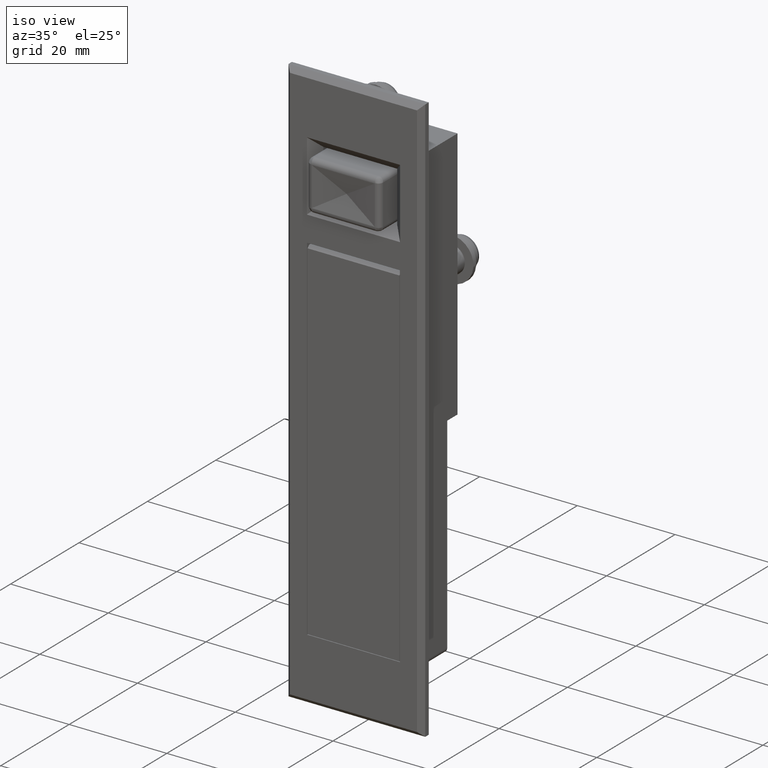
[diagram: clean part render]
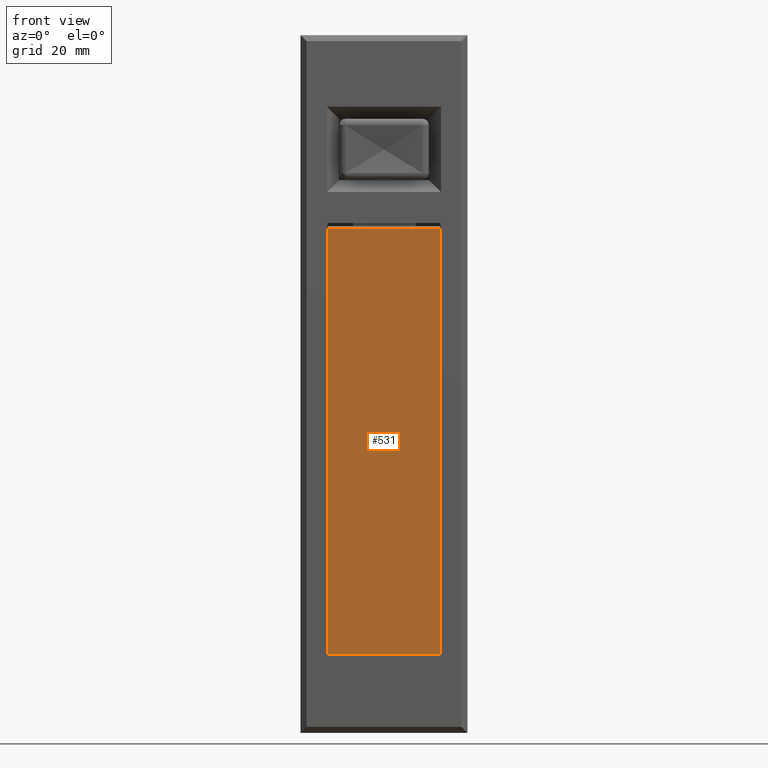
[diagram: tour spotlight — one face highlighted and labeled with its STEP entity id]
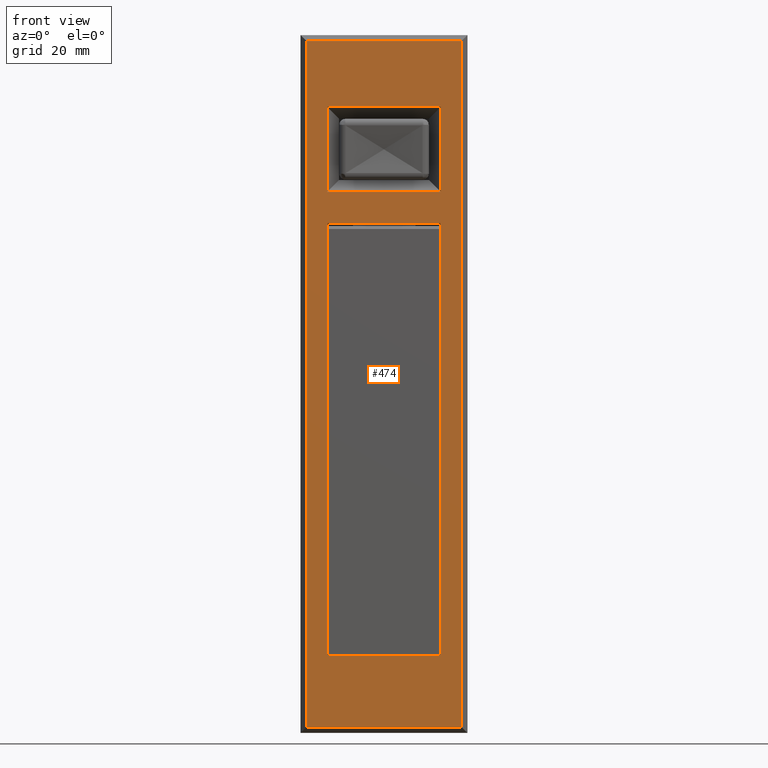
[diagram: tour spotlight — one face highlighted and labeled with its STEP entity id]
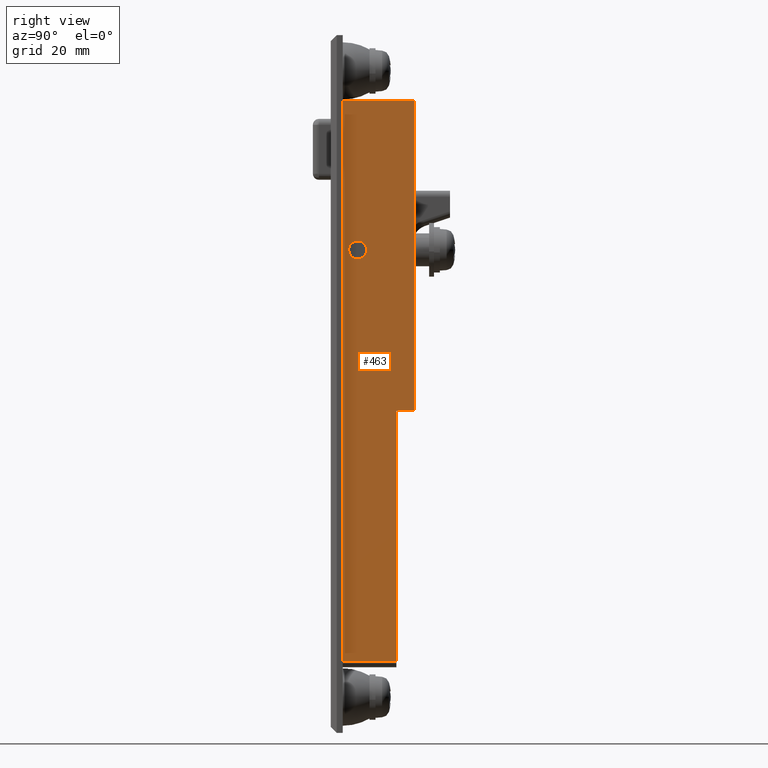
[diagram: tour spotlight — one face highlighted and labeled with its STEP entity id]
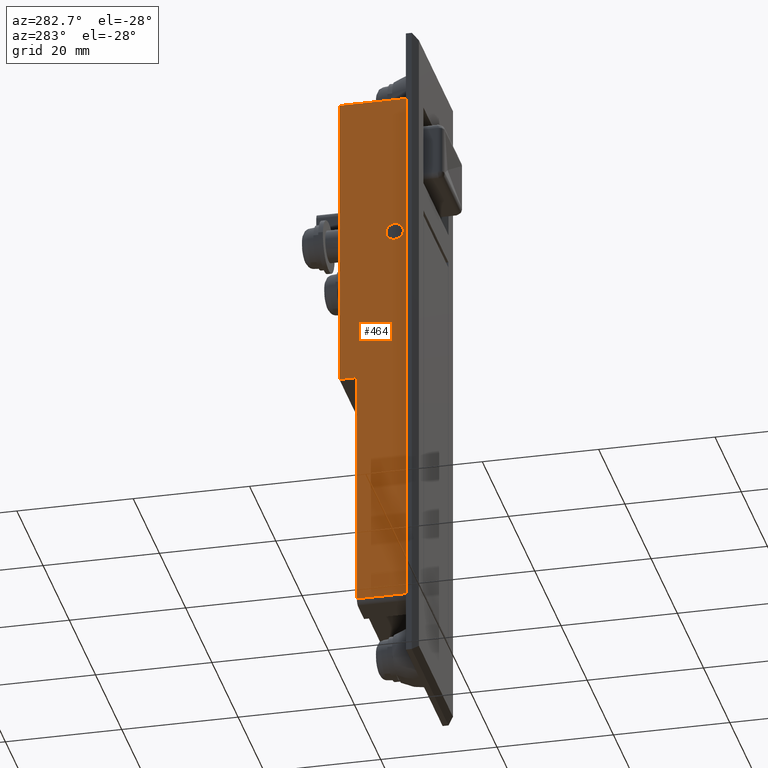
[diagram: tour spotlight — one face highlighted and labeled with its STEP entity id]
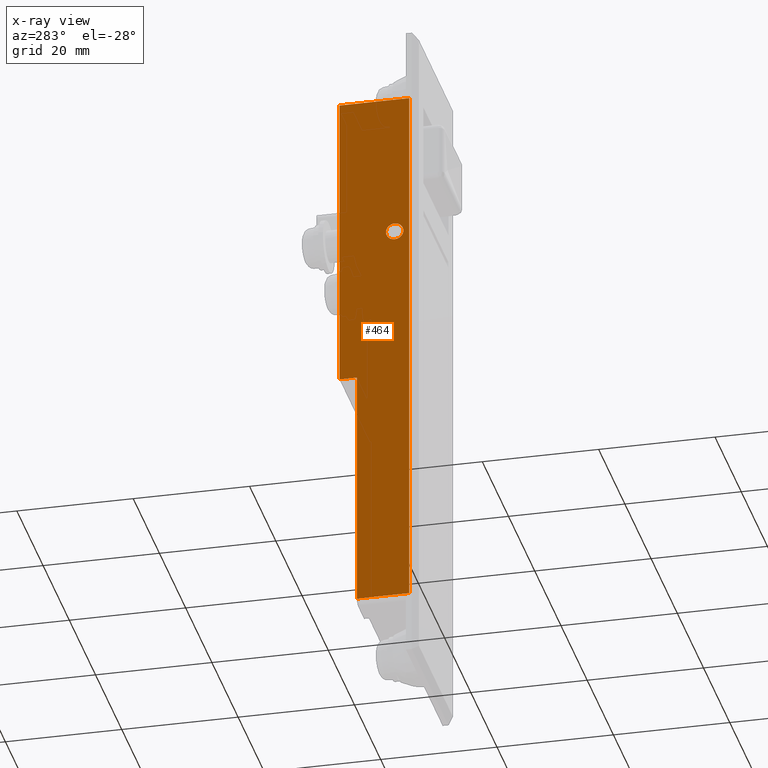
[diagram: x-ray of the same camera — body ghosted, this tour face saturated]
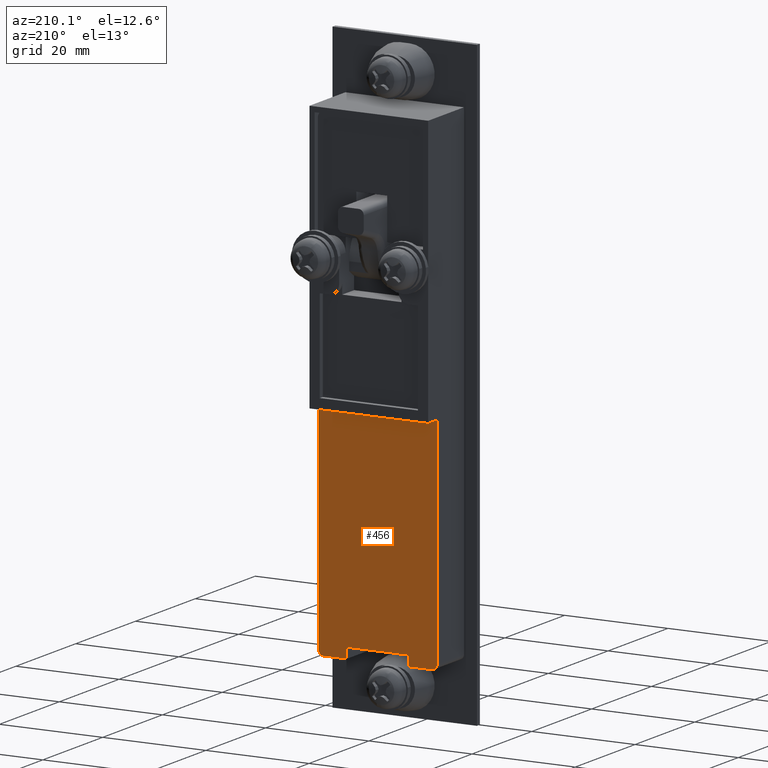
[diagram: tour spotlight — one face highlighted and labeled with its STEP entity id]
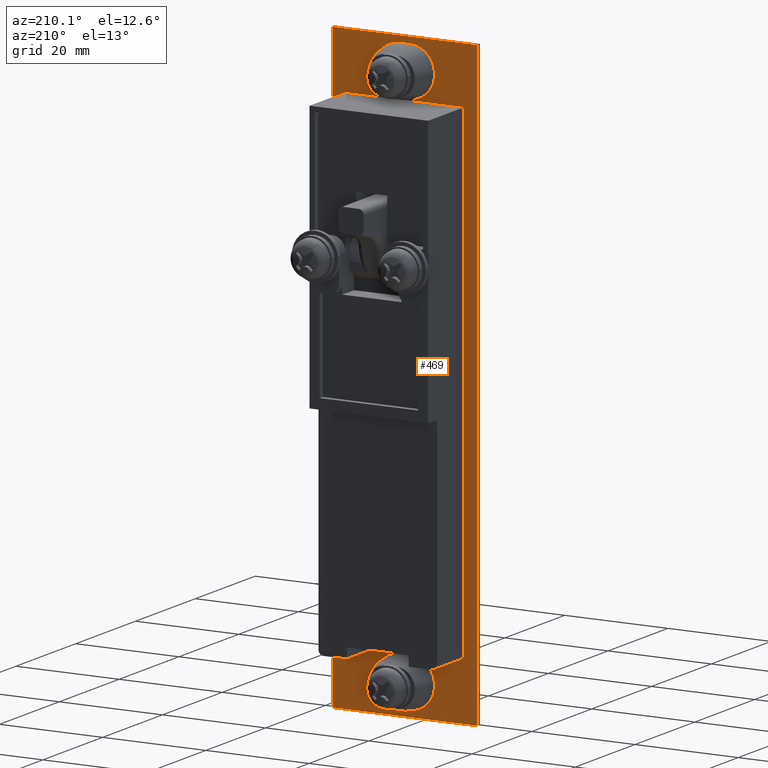
[diagram: tour spotlight — one face highlighted and labeled with its STEP entity id]
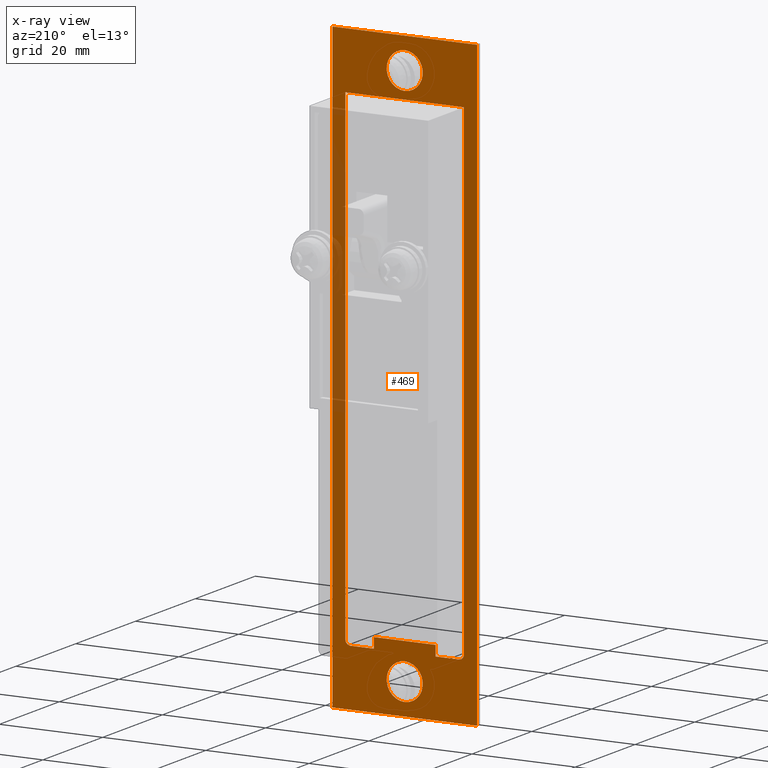
[diagram: x-ray of the same camera — body ghosted, this tour face saturated]
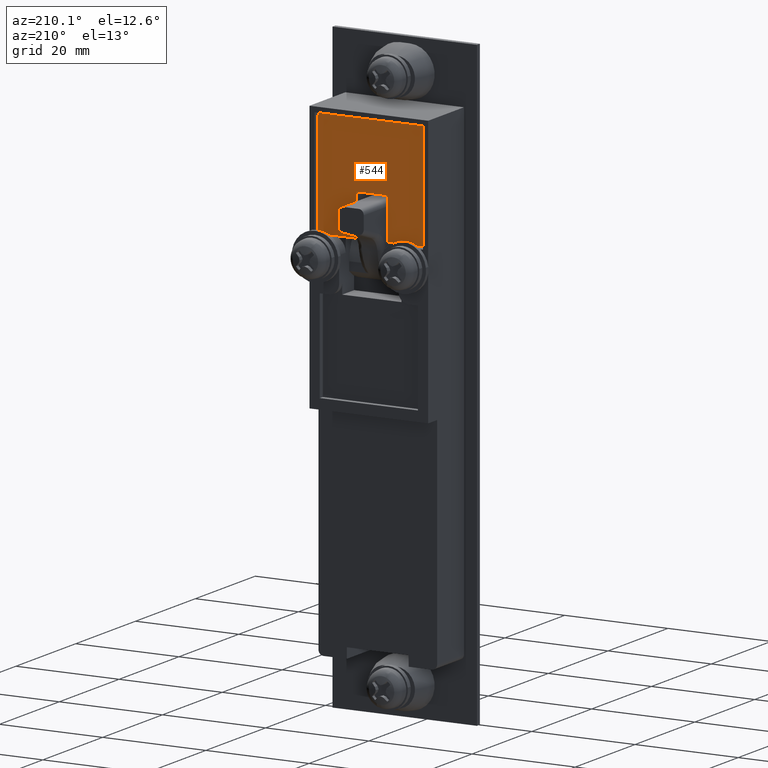
[diagram: tour spotlight — one face highlighted and labeled with its STEP entity id]
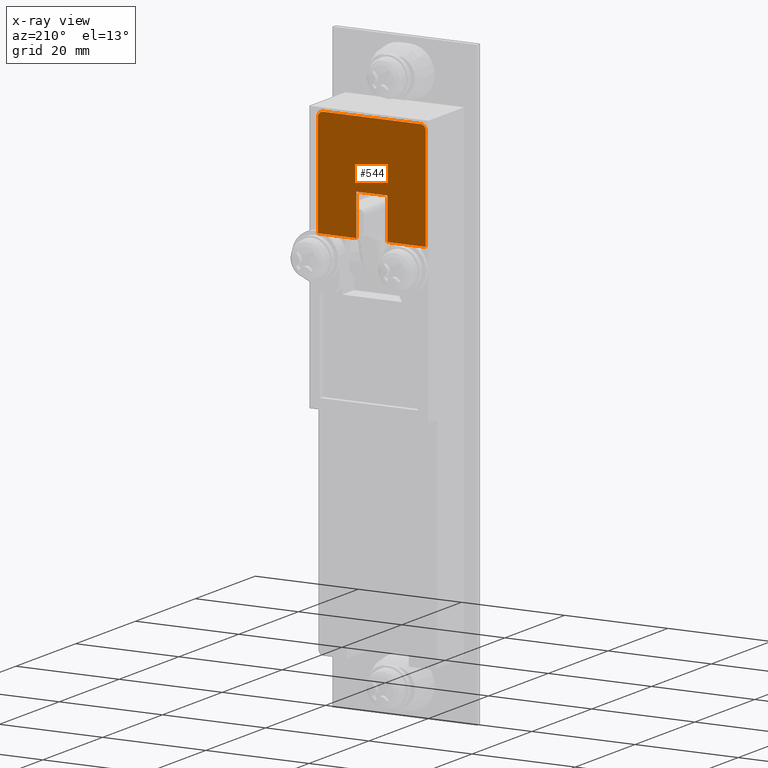
[diagram: x-ray of the same camera — body ghosted, this tour face saturated]
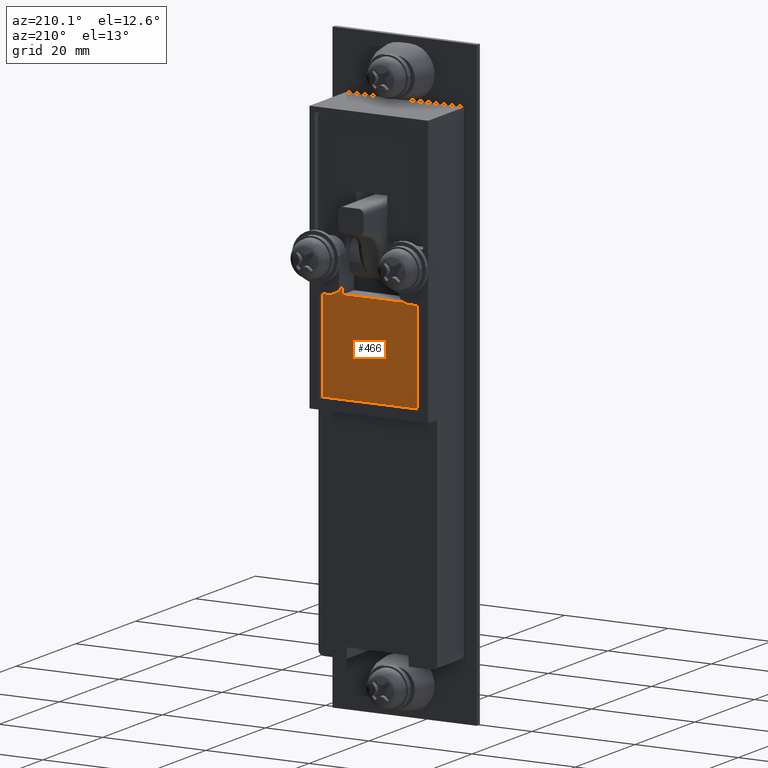
[diagram: tour spotlight — one face highlighted and labeled with its STEP entity id]
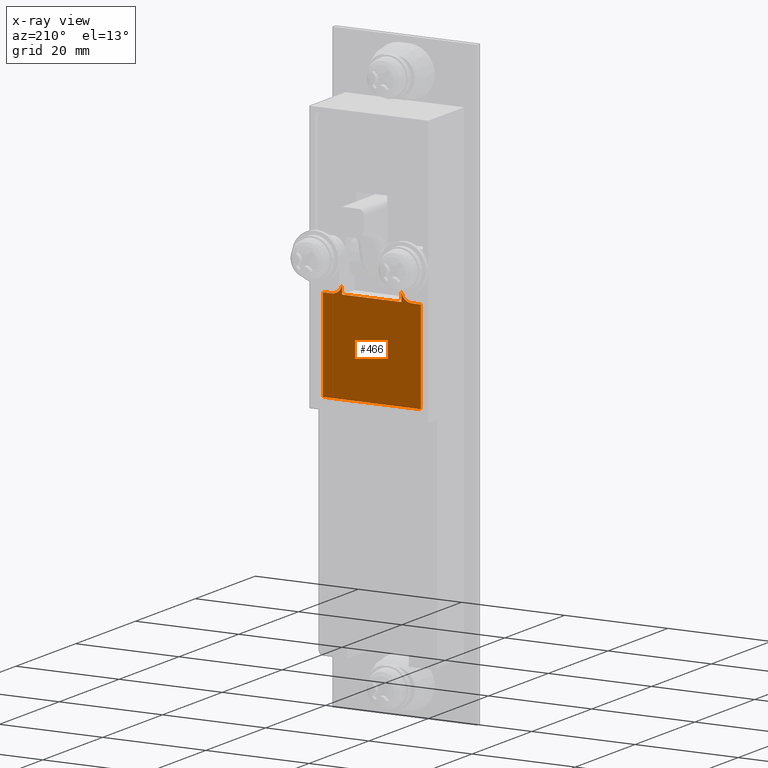
[diagram: x-ray of the same camera — body ghosted, this tour face saturated]
A machine part: a face-by-face anatomy tour. The part has 342 B-rep faces; the first image is the clean iso view, then the 8 largest visible faces are spotlighted one at a time (largest first), each with its STEP entity span.

Face 1 — front view, entity #531. In plain terms, the highlighted planar face has unit normal (0, 1, 0).
Definition (entity closure, byte-faithful):
#531=ADVANCED_FACE('',(#2681),#2680,.F.);
#2680=PLANE('',#4576);
#2681=FACE_OUTER_BOUND('',#4577,.T.);
#4573=CARTESIAN_POINT('',(-1.40000000000E+01,-1.12800000000E+01,1.06399914309E+01));
#4574=DIRECTION('',(1.00000000000E+00,-0.00000000000E+00,0.00000000000E+00));
#4575=DIRECTION('',(0.00000000000E+00,0.00000000000E+00,-1.00000000000E+00));
#4576=AXIS2_PLACEMENT_3D('',#4573,#4574,#4575);
#4577=EDGE_LOOP('',(#6111,#6112,#6113,#6114));
#6111=ORIENTED_EDGE('',*,*,#6912,.F.);
#6112=ORIENTED_EDGE('',*,*,#6946,.T.);
#6113=ORIENTED_EDGE('',*,*,#6921,.T.);
#6114=ORIENTED_EDGE('',*,*,#7011,.F.);
#6912=EDGE_CURVE('',#10606,#10613,#10614,.T.);
#6921=EDGE_CURVE('',#10676,#10669,#10677,.T.);
#6946=EDGE_CURVE('',#10606,#10676,#10845,.T.);
#7011=EDGE_CURVE('',#10613,#10669,#11274,.T.);
#10606=VERTEX_POINT('',#14145);
#10613=VERTEX_POINT('',#14149);
#10614=LINE('',#14150,#14151);
#10669=VERTEX_POINT('',#14185);
#10676=VERTEX_POINT('',#14189);
#10677=LINE('',#14190,#14191);
#10845=LINE('',#14318,#14319);
#11274=LINE('',#14594,#14595);
#14145=CARTESIAN_POINT('',(-1.40000000000E+01,-9.40000000000E+00,3.50000000000E+00));
#14149=CARTESIAN_POINT('',(-1.40000000000E+01,-9.40000000000E+00,-6.78999143087E+01));
#14150=CARTESIAN_POINT('',(-1.40000000000E+01,-9.40000000000E+00,3.50000000000E+00));
#14151=VECTOR('',#14152,7.13999143087E+01);
#14152=DIRECTION('',(0.00000000000E+00,0.00000000000E+00,-1.00000000000E+00));
#14185=CARTESIAN_POINT('',(-1.40000000000E+01,9.40000000000E+00,-6.78999143087E+01));
#14189=CARTESIAN_POINT('',(-1.40000000000E+01,9.40000000000E+00,3.50000000000E+00));
#14190=CARTESIAN_POINT('',(-1.40000000000E+01,9.40000000000E+00,3.50000000000E+00));
#14191=VECTOR('',#14192,7.13999143087E+01);
#14192=DIRECTION('',(0.00000000000E+00,0.00000000000E+00,-1.00000000000E+00));
#14318=CARTESIAN_POINT('',(-1.40000000000E+01,-9.40000000000E+00,3.50000000000E+00));
#14319=VECTOR('',#14320,1.88000000000E+01);
#14320=DIRECTION('',(0.00000000000E+00,1.00000000000E+00,0.00000000000E+00));
#14594=CARTESIAN_POINT('',(-1.40000000000E+01,-9.40000000000E+00,-6.78999143087E+01));
#14595=VECTOR('',#14596,1.88000000000E+01);
#14596=DIRECTION('',(0.00000000000E+00,1.00000000000E+00,0.00000000000E+00));

Face 2 — front view, entity #474. In plain terms, the highlighted planar face has unit normal (0, 1, 0).
Definition (entity closure, byte-faithful):
#474=ADVANCED_FACE('',(#2107,#2108,#2109),#2106,.F.);
#2106=PLANE('',#4230);
#2107=FACE_OUTER_BOUND('',#4231,.T.);
#2108=FACE_BOUND('',#4232,.T.);
#2109=FACE_BOUND('',#4233,.T.);
#4227=CARTESIAN_POINT('',(-1.40000000000E+01,1.56000000000E+01,4.50000000000E+01));
#4228=DIRECTION('',(1.00000000000E+00,0.00000000000E+00,0.00000000000E+00));
#4229=DIRECTION('',(0.00000000000E+00,-1.00000000000E+00,0.00000000000E+00));
#4230=AXIS2_PLACEMENT_3D('',#4227,#4228,#4229);
#4231=EDGE_LOOP('',(#5780,#5781,#5782,#5783));
#4232=EDGE_LOOP('',(#5784,#5785,#5786,#5787));
#4233=EDGE_LOOP('',(#5788,#5789,#5790,#5791));
#5780=ORIENTED_EDGE('',*,*,#6813,.T.);
#5781=ORIENTED_EDGE('',*,*,#6807,.T.);
#5782=ORIENTED_EDGE('',*,*,#6809,.T.);
#5783=ORIENTED_EDGE('',*,*,#6815,.T.);
#5784=ORIENTED_EDGE('',*,*,#6718,.T.);
#5785=ORIENTED_EDGE('',*,*,#6710,.T.);
#5786=ORIENTED_EDGE('',*,*,#6720,.T.);
#5787=ORIENTED_EDGE('',*,*,#6724,.T.);
#5788=ORIENTED_EDGE('',*,*,#6662,.T.);
#5789=ORIENTED_EDGE('',*,*,#6671,.T.);
#5790=ORIENTED_EDGE('',*,*,#6678,.T.);
#5791=ORIENTED_EDGE('',*,*,#6686,.T.);
#6662=EDGE_CURVE('',#8943,#8944,#8945,.T.);
#6671=EDGE_CURVE('',#8944,#9006,#9007,.T.);
#6678=EDGE_CURVE('',#9006,#9054,#9055,.T.);
#6686=EDGE_CURVE('',#9054,#8943,#9109,.T.);
#6710=EDGE_CURVE('',#9273,#9266,#9274,.T.);
#6718=EDGE_CURVE('',#9314,#9273,#9328,.T.);
#6720=EDGE_CURVE('',#9266,#9335,#9342,.T.);
#6724=EDGE_CURVE('',#9335,#9314,#9368,.T.);
#6807=EDGE_CURVE('',#9909,#9924,#9931,.T.);
#6809=EDGE_CURVE('',#9924,#9938,#9945,.T.);
#6813=EDGE_CURVE('',#9957,#9909,#9971,.T.);
#6815=EDGE_CURVE('',#9938,#9957,#9983,.T.);
#8943=VERTEX_POINT('',#13179);
#8944=VERTEX_POINT('',#13180);
#8945=LINE('',#13181,#13182);
#9006=VERTEX_POINT('',#13218);
#9007=LINE('',#13219,#13220);
#9054=VERTEX_POINT('',#13245);
#9055=LINE('',#13246,#13247);
#9109=LINE('',#13279,#13280);
#9266=VERTEX_POINT('',#13379);
#9273=VERTEX_POINT('',#13383);
#9274=LINE('',#13384,#13385);
#9314=VERTEX_POINT('',#13409);
#9328=LINE('',#13417,#13418);
#9335=VERTEX_POINT('',#13421);
#9342=LINE('',#13425,#13426);
#9368=LINE('',#13439,#13440);
#9909=VERTEX_POINT('',#13762);
#9924=VERTEX_POINT('',#13771);
#9931=LINE('',#13775,#13776);
#9938=VERTEX_POINT('',#13779);
#9945=LINE('',#13783,#13784);
#9957=VERTEX_POINT('',#13789);
#9971=LINE('',#13797,#13798);
#9983=LINE('',#13803,#13804);
#13179=CARTESIAN_POINT('',(-1.40000000000E+01,9.50000000000E+00,-6.79998000000E+01));
#13180=CARTESIAN_POINT('',(-1.40000000000E+01,9.50000000000E+00,4.50000000000E+00));
#13181=CARTESIAN_POINT('',(-1.40000000000E+01,9.50000000000E+00,-6.79998000000E+01));
#13182=VECTOR('',#13183,7.24998000000E+01);
#13183=DIRECTION('',(0.00000000000E+00,0.00000000000E+00,1.00000000000E+00));
#13218=CARTESIAN_POINT('',(-1.40000000000E+01,-9.50000000000E+00,4.50000000000E+00));
#13219=CARTESIAN_POINT('',(-1.40000000000E+01,9.50000000000E+00,4.50000000000E+00));
#13220=VECTOR('',#13221,1.90000000000E+01);
#13221=DIRECTION('',(0.00000000000E+00,-1.00000000000E+00,0.00000000000E+00));
#13245=CARTESIAN_POINT('',(-1.40000000000E+01,-9.50000000000E+00,-6.79998000000E+01));
#13246=CARTESIAN_POINT('',(-1.40000000000E+01,-9.50000000000E+00,4.50000000000E+00));
#13247=VECTOR('',#13248,7.24998000000E+01);
#13248=DIRECTION('',(0.00000000000E+00,0.00000000000E+00,-1.00000000000E+00));
#13279=CARTESIAN_POINT('',(-1.40000000000E+01,-9.50000000000E+00,-6.79998000000E+01));
#13280=VECTOR('',#13281,1.90000000000E+01);
#13281=DIRECTION('',(0.00000000000E+00,1.00000000000E+00,0.00000000000E+00));
#13379=CARTESIAN_POINT('',(-1.40000000000E+01,-9.55000000000E+00,9.70000000000E+00));
#13383=CARTESIAN_POINT('',(-1.40000000000E+01,-9.55000000000E+00,2.40000000000E+01));
#13384=CARTESIAN_POINT('',(-1.40000000000E+01,-9.55000000000E+00,2.40000000000E+01));
#13385=VECTOR('',#13386,1.43000000000E+01);
#13386=DIRECTION('',(0.00000000000E+00,0.00000000000E+00,-1.00000000000E+00));
#13409=CARTESIAN_POINT('',(-1.40000000000E+01,9.55000000000E+00,2.40000000000E+01));
#13417=CARTESIAN_POINT('',(-1.40000000000E+01,9.55000000000E+00,2.40000000000E+01));
#13418=VECTOR('',#13419,1.91000000000E+01);
#13419=DIRECTION('',(0.00000000000E+00,-1.00000000000E+00,0.00000000000E+00));
#13421=CARTESIAN_POINT('',(-1.40000000000E+01,9.55000000000E+00,9.70000000000E+00));
#13425=CARTESIAN_POINT('',(-1.40000000000E+01,-9.55000000000E+00,9.70000000000E+00));
#13426=VECTOR('',#13427,1.91000000000E+01);
#13427=DIRECTION('',(0.00000000000E+00,1.00000000000E+00,0.00000000000E+00));
#13439=CARTESIAN_POINT('',(-1.40000000000E+01,9.55000000000E+00,9.70000000000E+00));
#13440=VECTOR('',#13441,1.43000000000E+01);
#13441=DIRECTION('',(0.00000000000E+00,0.00000000000E+00,1.00000000000E+00));
#13762=CARTESIAN_POINT('',(-1.40000000000E+01,-1.30000000000E+01,-7.99998000000E+01));
#13771=CARTESIAN_POINT('',(-1.40000000000E+01,-1.30000000000E+01,3.50000000000E+01));
#13775=CARTESIAN_POINT('',(-1.40000000000E+01,-1.30000000000E+01,-7.99998000000E+01));
#13776=VECTOR('',#13777,1.14999800000E+02);
#13777=DIRECTION('',(0.00000000000E+00,0.00000000000E+00,1.00000000000E+00));
#13779=CARTESIAN_POINT('',(-1.40000000000E+01,1.30000000000E+01,3.50000000000E+01));
#13783=CARTESIAN_POINT('',(-1.40000000000E+01,-1.30000000000E+01,3.50000000000E+01));
#13784=VECTOR('',#13785,2.60000000000E+01);
#13785=DIRECTION('',(0.00000000000E+00,1.00000000000E+00,0.00000000000E+00));
#13789=CARTESIAN_POINT('',(-1.40000000000E+01,1.30000000000E+01,-7.99998000000E+01));
#13797=CARTESIAN_POINT('',(-1.40000000000E+01,1.30000000000E+01,-7.99998000000E+01));
#13798=VECTOR('',#13799,2.60000000000E+01);
#13799=DIRECTION('',(0.00000000000E+00,-1.00000000000E+00,0.00000000000E+00));
#13803=CARTESIAN_POINT('',(-1.40000000000E+01,1.30000000000E+01,3.50000000000E+01));
#13804=VECTOR('',#13805,1.14999800000E+02);
#13805=DIRECTION('',(0.00000000000E+00,0.00000000000E+00,-1.00000000000E+00));

Face 3 — right view, entity #463. In plain terms, the highlighted planar face has unit normal (1, 0, 0).
Definition (entity closure, byte-faithful):
#463=ADVANCED_FACE('',(#1991,#1992),#1990,.T.);
#1990=PLANE('',#4169);
#1991=FACE_OUTER_BOUND('',#4170,.T.);
#1992=FACE_BOUND('',#4171,.T.);
#4166=CARTESIAN_POINT('',(-1.32000000000E+01,-1.15000000000E+01,-7.83997800000E+01));
#4167=DIRECTION('',(0.00000000000E+00,-1.00000000000E+00,0.00000000000E+00));
#4168=DIRECTION('',(1.00000000000E+00,0.00000000000E+00,0.00000000000E+00));
#4169=AXIS2_PLACEMENT_3D('',#4166,#4167,#4168);
#4170=EDGE_LOOP('',(#5650,#5651,#5652,#5653,#5654,#5655));
#4171=EDGE_LOOP('',(#5656,#5657,#5658));
#5650=ORIENTED_EDGE('',*,*,#6836,.T.);
#5651=ORIENTED_EDGE('',*,*,#6700,.T.);
#5652=ORIENTED_EDGE('',*,*,#6819,.T.);
#5653=ORIENTED_EDGE('',*,*,#6825,.T.);
#5654=ORIENTED_EDGE('',*,*,#6837,.T.);
#5655=ORIENTED_EDGE('',*,*,#6821,.T.);
#5656=ORIENTED_EDGE('',*,*,#6838,.F.);
#5657=ORIENTED_EDGE('',*,*,#6839,.F.);
#5658=ORIENTED_EDGE('',*,*,#6840,.F.);
#6700=EDGE_CURVE('',#9182,#9196,#9203,.T.);
#6819=EDGE_CURVE('',#9196,#10002,#10009,.T.);
#6821=EDGE_CURVE('',#10021,#10022,#10023,.T.);
#6825=EDGE_CURVE('',#10002,#10049,#10050,.T.);
#6836=EDGE_CURVE('',#10022,#9182,#10121,.T.);
#6837=EDGE_CURVE('',#10049,#10021,#10127,.T.);
#6838=EDGE_CURVE('',#10133,#10134,#10135,.T.);
#6839=EDGE_CURVE('',#10141,#10133,#10142,.T.);
#6840=EDGE_CURVE('',#10134,#10141,#10148,.T.);
#9182=VERTEX_POINT('',#13321);
#9196=VERTEX_POINT('',#13330);
#9203=LINE('',#13335,#13336);
#10002=VERTEX_POINT('',#13813);
#10009=LINE('',#13817,#13818);
#10021=VERTEX_POINT('',#13823);
#10022=VERTEX_POINT('',#13824);
#10023=LINE('',#13825,#13826);
#10049=VERTEX_POINT('',#13839);
#10050=LINE('',#13840,#13841);
#10121=LINE('',#13878,#13879);
#10127=LINE('',#13881,#13882);
#10133=VERTEX_POINT('',#13884);
#10134=VERTEX_POINT('',#13885);
#10135=CIRCLE('',#13889,1.50000000000E+00);
#10141=VERTEX_POINT('',#13890);
#10142=CIRCLE('',#13894,1.50000000000E+00);
#10148=CIRCLE('',#13898,1.50000000000E+00);
#13321=CARTESIAN_POINT('',(-1.20000000000E+01,-1.15000000000E+01,-6.89998000000E+01));
#13330=CARTESIAN_POINT('',(-3.00000000000E+00,-1.15000000000E+01,-6.89998000000E+01));
#13335=CARTESIAN_POINT('',(-1.20000000000E+01,-1.15000000000E+01,-6.89998000000E+01));
#13336=VECTOR('',#13337,9.00000000000E+00);
#13337=DIRECTION('',(1.00000000000E+00,0.00000000000E+00,0.00000000000E+00));
#13813=CARTESIAN_POINT('',(-3.00000000000E+00,-1.15000000000E+01,-2.69998000000E+01));
#13817=CARTESIAN_POINT('',(-3.00000000000E+00,-1.15000000000E+01,-6.89998000000E+01));
#13818=VECTOR('',#13819,4.20000000000E+01);
#13819=DIRECTION('',(0.00000000000E+00,0.00000000000E+00,1.00000000000E+00));
#13823=CARTESIAN_POINT('',(0.00000000000E+00,-1.15000000000E+01,2.50000000000E+01));
#13824=CARTESIAN_POINT('',(-1.20000000000E+01,-1.15000000000E+01,2.50000000000E+01));
#13825=CARTESIAN_POINT('',(0.00000000000E+00,-1.15000000000E+01,2.50000000000E+01));
#13826=VECTOR('',#13827,1.20000000000E+01);
#13827=DIRECTION('',(-1.00000000000E+00,0.00000000000E+00,0.00000000000E+00));
#13839=CARTESIAN_POINT('',(0.00000000000E+00,-1.15000000000E+01,-2.69998000000E+01));
#13840=CARTESIAN_POINT('',(-3.00000000000E+00,-1.15000000000E+01,-2.69998000000E+01));
#13841=VECTOR('',#13842,3.00000000000E+00);
#13842=DIRECTION('',(1.00000000000E+00,0.00000000000E+00,0.00000000000E+00));
#13878=CARTESIAN_POINT('',(-1.20000000000E+01,-1.15000000000E+01,2.50000000000E+01));
#13879=VECTOR('',#13880,9.39998000000E+01);
#13880=DIRECTION('',(0.00000000000E+00,0.00000000000E+00,-1.00000000000E+00));
#13881=CARTESIAN_POINT('',(0.00000000000E+00,-1.15000000000E+01,-2.69998000000E+01));
#13882=VECTOR('',#13883,5.19998000000E+01);
#13883=DIRECTION('',(0.00000000000E+00,0.00000000000E+00,1.00000000000E+00));
#13884=CARTESIAN_POINT('',(-1.09895143543E+01,-1.15000000000E+01,1.77050807278E-01));
#13885=CARTESIAN_POINT('',(-9.50000000000E+00,-1.15000000000E+01,-1.50000000000E+00));
#13886=CARTESIAN_POINT('',(-9.50000000000E+00,-1.15000000000E+01,-1.33226762955E-15));
#13887=DIRECTION('',(-1.03186429741E-14,-1.00000000000E+00,-7.67766475050E-14));
#13888=DIRECTION('',(1.19348975147E-15,7.67766475050E-14,-1.00000000000E+00));
#13889=AXIS2_PLACEMENT_3D('',#13886,#13887,#13888);
#13890=CARTESIAN_POINT('',(-8.01051633979E+00,-1.15000000000E+01,-1.77308843491E-01));
#13891=CARTESIAN_POINT('',(-9.50000000000E+00,-1.15000000000E+01,-1.33226762955E-15));
#13892=DIRECTION('',(-1.03186429741E-14,-1.00000000000E+00,-7.67766475050E-14));
#13893=DIRECTION('',(1.19348975147E-15,7.67766475050E-14,-1.00000000000E+00));
#13894=AXIS2_PLACEMENT_3D('',#13891,#13892,#13893);
#13895=CARTESIAN_POINT('',(-9.50000000000E+00,-1.15000000000E+01,-1.33226762955E-15));
#13896=DIRECTION('',(-1.03186429741E-14,-1.00000000000E+00,-7.67766475050E-14));
#13897=DIRECTION('',(1.19348975147E-15,7.67766475050E-14,-1.00000000000E+00));
#13898=AXIS2_PLACEMENT_3D('',#13895,#13896,#13897);

Face 4 — auxiliary view, entity #464. An x-ray twin of the same camera follows (body ghosted, this face saturated) — the face is partly hidden behind the body. In plain terms, the highlighted planar face has unit normal (1, 0, 0).
Definition (entity closure, byte-faithful):
#464=ADVANCED_FACE('',(#2002,#2003),#2001,.F.);
#2001=PLANE('',#4175);
#2002=FACE_OUTER_BOUND('',#4176,.T.);
#2003=FACE_BOUND('',#4177,.T.);
#4172=CARTESIAN_POINT('',(-1.32000000000E+01,1.15000000000E+01,-7.83997800000E+01));
#4173=DIRECTION('',(0.00000000000E+00,-1.00000000000E+00,0.00000000000E+00));
#4174=DIRECTION('',(1.00000000000E+00,0.00000000000E+00,0.00000000000E+00));
#4175=AXIS2_PLACEMENT_3D('',#4172,#4173,#4174);
#4176=EDGE_LOOP('',(#5659,#5660,#5661,#5662,#5663,#5664));
#4177=EDGE_LOOP('',(#5665,#5666,#5667));
#5659=ORIENTED_EDGE('',*,*,#6817,.F.);
#5660=ORIENTED_EDGE('',*,*,#6694,.T.);
#5661=ORIENTED_EDGE('',*,*,#6841,.F.);
#5662=ORIENTED_EDGE('',*,*,#6823,.F.);
#5663=ORIENTED_EDGE('',*,*,#6842,.F.);
#5664=ORIENTED_EDGE('',*,*,#6826,.F.);
#5665=ORIENTED_EDGE('',*,*,#6843,.T.);
#5666=ORIENTED_EDGE('',*,*,#6844,.T.);
#5667=ORIENTED_EDGE('',*,*,#6845,.T.);
#6694=EDGE_CURVE('',#9161,#9153,#9162,.T.);
#6817=EDGE_CURVE('',#9161,#9995,#9996,.T.);
#6823=EDGE_CURVE('',#10029,#10036,#10037,.T.);
#6826=EDGE_CURVE('',#9995,#10056,#10057,.T.);
#6841=EDGE_CURVE('',#10036,#9153,#10154,.T.);
#6842=EDGE_CURVE('',#10056,#10029,#10160,.T.);
#6843=EDGE_CURVE('',#10166,#10167,#10168,.T.);
#6844=EDGE_CURVE('',#10167,#10174,#10175,.T.);
#6845=EDGE_CURVE('',#10174,#10166,#10181,.T.);
#9153=VERTEX_POINT('',#13302);
#9161=VERTEX_POINT('',#13308);
#9162=LINE('',#13309,#13310);
#9995=VERTEX_POINT('',#13809);
#9996=LINE('',#13810,#13811);
#10029=VERTEX_POINT('',#13828);
#10036=VERTEX_POINT('',#13832);
#10037=LINE('',#13833,#13834);
#10056=VERTEX_POINT('',#13843);
#10057=LINE('',#13844,#13845);
#10154=LINE('',#13899,#13900);
#10160=LINE('',#13902,#13903);
#10166=VERTEX_POINT('',#13905);
#10167=VERTEX_POINT('',#13906);
#10168=CIRCLE('',#13910,1.50000000000E+00);
#10174=VERTEX_POINT('',#13911);
#10175=CIRCLE('',#13915,1.50000000000E+00);
#10181=CIRCLE('',#13919,1.50000000000E+00);
#13302=CARTESIAN_POINT('',(-1.20000000000E+01,1.15000000000E+01,-6.89998000000E+01));
#13308=CARTESIAN_POINT('',(-3.00000000000E+00,1.15000000000E+01,-6.89998000000E+01));
#13309=CARTESIAN_POINT('',(-3.00000000000E+00,1.15000000000E+01,-6.89998000000E+01));
#13310=VECTOR('',#13311,9.00000000000E+00);
#13311=DIRECTION('',(-1.00000000000E+00,0.00000000000E+00,0.00000000000E+00));
#13809=CARTESIAN_POINT('',(-3.00000000000E+00,1.15000000000E+01,-2.69998000000E+01));
#13810=CARTESIAN_POINT('',(-3.00000000000E+00,1.15000000000E+01,-6.89998000000E+01));
#13811=VECTOR('',#13812,4.20000000000E+01);
#13812=DIRECTION('',(0.00000000000E+00,0.00000000000E+00,1.00000000000E+00));
#13828=CARTESIAN_POINT('',(0.00000000000E+00,1.15000000000E+01,2.50000000000E+01));
#13832=CARTESIAN_POINT('',(-1.20000000000E+01,1.15000000000E+01,2.50000000000E+01));
#13833=CARTESIAN_POINT('',(0.00000000000E+00,1.15000000000E+01,2.50000000000E+01));
#13834=VECTOR('',#13835,1.20000000000E+01);
#13835=DIRECTION('',(-1.00000000000E+00,0.00000000000E+00,0.00000000000E+00));
#13843=CARTESIAN_POINT('',(0.00000000000E+00,1.15000000000E+01,-2.69998000000E+01));
#13844=CARTESIAN_POINT('',(-3.00000000000E+00,1.15000000000E+01,-2.69998000000E+01));
#13845=VECTOR('',#13846,3.00000000000E+00);
#13846=DIRECTION('',(1.00000000000E+00,0.00000000000E+00,0.00000000000E+00));
#13899=CARTESIAN_POINT('',(-1.20000000000E+01,1.15000000000E+01,2.50000000000E+01));
#13900=VECTOR('',#13901,9.39998000000E+01);
#13901=DIRECTION('',(0.00000000000E+00,0.00000000000E+00,-1.00000000000E+00));
#13902=CARTESIAN_POINT('',(0.00000000000E+00,1.15000000000E+01,-2.69998000000E+01));
#13903=VECTOR('',#13904,5.19998000000E+01);
#13904=DIRECTION('',(0.00000000000E+00,0.00000000000E+00,1.00000000000E+00));
#13905=CARTESIAN_POINT('',(-9.50000000000E+00,1.15000000000E+01,-1.50000000000E+00));
#13906=CARTESIAN_POINT('',(-8.01160551987E+00,1.15000000000E+01,1.86230694324E-01));
#13907=CARTESIAN_POINT('',(-9.50000000000E+00,1.15000000000E+01,6.55031584529E-15));
#13908=DIRECTION('',(4.18691322316E-16,-1.00000000000E+00,-3.55271367880E-15));
#13909=DIRECTION('',(2.07241631263E-15,3.55271367880E-15,-1.00000000000E+00));
#13910=AXIS2_PLACEMENT_3D('',#13907,#13908,#13909);
#13911=CARTESIAN_POINT('',(-1.09883993207E+01,1.15000000000E+01,-1.86192003157E-01));
#13912=CARTESIAN_POINT('',(-9.50000000000E+00,1.15000000000E+01,6.55031584529E-15));
#13913=DIRECTION('',(4.18691322316E-16,-1.00000000000E+00,-3.55271367880E-15));
#13914=DIRECTION('',(2.07241631263E-15,3.55271367880E-15,-1.00000000000E+00));
#13915=AXIS2_PLACEMENT_3D('',#13912,#13913,#13914);
#13916=CARTESIAN_POINT('',(-9.50000000000E+00,1.15000000000E+01,6.55031584529E-15));
#13917=DIRECTION('',(4.18691322316E-16,-1.00000000000E+00,-3.55271367880E-15));
#13918=DIRECTION('',(2.07241631263E-15,3.55271367880E-15,-1.00000000000E+00));
#13919=AXIS2_PLACEMENT_3D('',#13916,#13917,#13918);

Face 5 — auxiliary view, entity #456. In plain terms, the highlighted planar face has unit normal (0, 1, 0).
Definition (entity closure, byte-faithful):
#456=ADVANCED_FACE('',(#1921),#1920,.T.);
#1920=PLANE('',#4134);
#1921=FACE_OUTER_BOUND('',#4135,.T.);
#4131=CARTESIAN_POINT('',(-3.00000000000E+00,-1.38000000000E+01,-2.26998000000E+01));
#4132=DIRECTION('',(1.00000000000E+00,-0.00000000000E+00,0.00000000000E+00));
#4133=DIRECTION('',(0.00000000000E+00,0.00000000000E+00,-1.00000000000E+00));
#4134=AXIS2_PLACEMENT_3D('',#4131,#4132,#4133);
#4135=EDGE_LOOP('',(#5616,#5617,#5618,#5619,#5620,#5621,#5622,#5623,#5624,#5625));
#5616=ORIENTED_EDGE('',*,*,#6816,.T.);
#5617=ORIENTED_EDGE('',*,*,#6695,.T.);
#5618=ORIENTED_EDGE('',*,*,#6817,.T.);
#5619=ORIENTED_EDGE('',*,*,#6818,.T.);
#5620=ORIENTED_EDGE('',*,*,#6819,.F.);
#5621=ORIENTED_EDGE('',*,*,#6699,.T.);
#5622=ORIENTED_EDGE('',*,*,#6820,.T.);
#5623=ORIENTED_EDGE('',*,*,#6661,.T.);
#5624=ORIENTED_EDGE('',*,*,#6654,.T.);
#5625=ORIENTED_EDGE('',*,*,#6657,.T.);
#6654=EDGE_CURVE('',#8890,#8883,#8891,.T.);
#6657=EDGE_CURVE('',#8883,#8904,#8911,.T.);
#6661=EDGE_CURVE('',#8923,#8890,#8937,.T.);
#6695=EDGE_CURVE('',#9168,#9161,#9169,.T.);
#6699=EDGE_CURVE('',#9196,#9189,#9197,.T.);
#6816=EDGE_CURVE('',#8904,#9168,#9989,.T.);
#6817=EDGE_CURVE('',#9161,#9995,#9996,.T.);
#6818=EDGE_CURVE('',#9995,#10002,#10003,.T.);
#6819=EDGE_CURVE('',#9196,#10002,#10009,.T.);
#6820=EDGE_CURVE('',#9189,#8923,#10015,.T.);
#8883=VERTEX_POINT('',#13146);
#8890=VERTEX_POINT('',#13150);
#8891=LINE('',#13151,#13152);
#8904=VERTEX_POINT('',#13158);
#8911=LINE('',#13162,#13163);
#8923=VERTEX_POINT('',#13168);
#8937=LINE('',#13176,#13177);
#9161=VERTEX_POINT('',#13308);
#9168=VERTEX_POINT('',#13312);
#9169=CIRCLE('',#13316,1.00000000000E+00);
#9189=VERTEX_POINT('',#13326);
#9196=VERTEX_POINT('',#13330);
#9197=CIRCLE('',#13334,1.00000000000E+00);
#9989=LINE('',#13806,#13807);
#9995=VERTEX_POINT('',#13809);
#9996=LINE('',#13810,#13811);
#10002=VERTEX_POINT('',#13813);
#10003=LINE('',#13814,#13815);
#10009=LINE('',#13817,#13818);
#10015=LINE('',#13820,#13821);
#13146=CARTESIAN_POINT('',(-3.00000000000E+00,6.00000000000E+00,-6.79998000000E+01));
#13150=CARTESIAN_POINT('',(-3.00000000000E+00,-6.00000000000E+00,-6.79998000000E+01));
#13151=CARTESIAN_POINT('',(-3.00000000000E+00,-6.00000000000E+00,-6.79998000000E+01));
#13152=VECTOR('',#13153,1.20000000000E+01);
#13153=DIRECTION('',(-7.06841992345E-15,1.00000000000E+00,0.00000000000E+00));
#13158=CARTESIAN_POINT('',(-3.00000000000E+00,6.00000000000E+00,-6.99998000000E+01));
#13162=CARTESIAN_POINT('',(-3.00000000000E+00,6.00000000000E+00,-6.79998000000E+01));
#13163=VECTOR('',#13164,2.00000000000E+00);
#13164=DIRECTION('',(0.00000000000E+00,0.00000000000E+00,-1.00000000000E+00));
#13168=CARTESIAN_POINT('',(-3.00000000000E+00,-6.00000000000E+00,-6.99998000000E+01));
#13176=CARTESIAN_POINT('',(-3.00000000000E+00,-6.00000000000E+00,-6.99998000000E+01));
#13177=VECTOR('',#13178,2.00000000000E+00);
#13178=DIRECTION('',(4.24105195407E-14,0.00000000000E+00,1.00000000000E+00));
#13308=CARTESIAN_POINT('',(-3.00000000000E+00,1.15000000000E+01,-6.89998000000E+01));
#13312=CARTESIAN_POINT('',(-3.00000000000E+00,1.05000000000E+01,-6.99998000000E+01));
#13313=CARTESIAN_POINT('',(-3.00000000000E+00,1.05000000000E+01,-6.89998000000E+01));
#13314=DIRECTION('',(1.00000000000E+00,1.57009245868E-16,-2.23123558198E-30));
#13315=DIRECTION('',(-0.00000000000E+00,1.42108547152E-14,1.00000000000E+00));
#13316=AXIS2_PLACEMENT_3D('',#13313,#13314,#13315);
#13326=CARTESIAN_POINT('',(-3.00000000000E+00,-1.05000000000E+01,-6.99998000000E+01));
#13330=CARTESIAN_POINT('',(-3.00000000000E+00,-1.15000000000E+01,-6.89998000000E+01));
#13331=CARTESIAN_POINT('',(-3.00000000000E+00,-1.05000000000E+01,-6.89998000000E+01));
#13332=DIRECTION('',(1.00000000000E+00,-2.23123558198E-30,-1.57009245868E-16));
#13333=DIRECTION('',(-0.00000000000E+00,1.00000000000E+00,-1.42108547152E-14));
#13334=AXIS2_PLACEMENT_3D('',#13331,#13332,#13333);
#13806=CARTESIAN_POINT('',(-3.00000000000E+00,6.00000000000E+00,-6.99998000000E+01));
#13807=VECTOR('',#13808,4.50000000000E+00);
#13808=DIRECTION('',(0.00000000000E+00,1.00000000000E+00,0.00000000000E+00));
#13809=CARTESIAN_POINT('',(-3.00000000000E+00,1.15000000000E+01,-2.69998000000E+01));
#13810=CARTESIAN_POINT('',(-3.00000000000E+00,1.15000000000E+01,-6.89998000000E+01));
#13811=VECTOR('',#13812,4.20000000000E+01);
#13812=DIRECTION('',(0.00000000000E+00,0.00000000000E+00,1.00000000000E+00));
#13813=CARTESIAN_POINT('',(-3.00000000000E+00,-1.15000000000E+01,-2.69998000000E+01));
#13814=CARTESIAN_POINT('',(-3.00000000000E+00,1.15000000000E+01,-2.69998000000E+01));
#13815=VECTOR('',#13816,2.30000000000E+01);
#13816=DIRECTION('',(0.00000000000E+00,-1.00000000000E+00,0.00000000000E+00));
#13817=CARTESIAN_POINT('',(-3.00000000000E+00,-1.15000000000E+01,-6.89998000000E+01));
#13818=VECTOR('',#13819,4.20000000000E+01);
#13819=DIRECTION('',(0.00000000000E+00,0.00000000000E+00,1.00000000000E+00));
#13820=CARTESIAN_POINT('',(-3.00000000000E+00,-1.05000000000E+01,-6.99998000000E+01));
#13821=VECTOR('',#13822,4.50000000000E+00);
#13822=DIRECTION('',(0.00000000000E+00,1.00000000000E+00,0.00000000000E+00));

Face 6 — auxiliary view, entity #469. An x-ray twin of the same camera follows (body ghosted, this face saturated) — the face is partly hidden behind the body. In plain terms, the highlighted planar face has unit normal (0, 1, 0).
Definition (entity closure, byte-faithful):
#469=ADVANCED_FACE('',(#2054,#2055,#2056,#2057),#2053,.T.);
#2053=PLANE('',#4202);
#2054=FACE_OUTER_BOUND('',#4203,.T.);
#2055=FACE_BOUND('',#4204,.T.);
#2056=FACE_BOUND('',#4205,.T.);
#2057=FACE_BOUND('',#4206,.T.);
#4199=CARTESIAN_POINT('',(-1.20000000000E+01,1.68000000000E+01,4.60000000000E+01));
#4200=DIRECTION('',(1.00000000000E+00,0.00000000000E+00,0.00000000000E+00));
#4201=DIRECTION('',(0.00000000000E+00,-1.00000000000E+00,0.00000000000E+00));
#4202=AXIS2_PLACEMENT_3D('',#4199,#4200,#4201);
#4203=EDGE_LOOP('',(#5709,#5710,#5711,#5712));
#4204=EDGE_LOOP('',(#5713,#5714,#5715,#5716,#5717,#5718,#5719,#5720,#5721,#5722));
#4205=EDGE_LOOP('',(#5723,#5724,#5725,#5726,#5727));
#4206=EDGE_LOOP('',(#5728,#5729,#5730,#5731,#5732));
#5709=ORIENTED_EDGE('',*,*,#6835,.F.);
#5710=ORIENTED_EDGE('',*,*,#6830,.F.);
#5711=ORIENTED_EDGE('',*,*,#6832,.F.);
#5712=ORIENTED_EDGE('',*,*,#6834,.F.);
#5713=ORIENTED_EDGE('',*,*,#6858,.T.);
#5714=ORIENTED_EDGE('',*,*,#6658,.F.);
#5715=ORIENTED_EDGE('',*,*,#6652,.F.);
#5716=ORIENTED_EDGE('',*,*,#6660,.F.);
#5717=ORIENTED_EDGE('',*,*,#6846,.T.);
#5718=ORIENTED_EDGE('',*,*,#6697,.T.);
#5719=ORIENTED_EDGE('',*,*,#6836,.F.);
#5720=ORIENTED_EDGE('',*,*,#6824,.F.);
#5721=ORIENTED_EDGE('',*,*,#6841,.T.);
#5722=ORIENTED_EDGE('',*,*,#6693,.T.);
#5723=ORIENTED_EDGE('',*,*,#6859,.T.);
#5724=ORIENTED_EDGE('',*,*,#6860,.T.);
#5725=ORIENTED_EDGE('',*,*,#6861,.T.);
#5726=ORIENTED_EDGE('',*,*,#6862,.T.);
#5727=ORIENTED_EDGE('',*,*,#6863,.T.);
#5728=ORIENTED_EDGE('',*,*,#6864,.T.);
#5729=ORIENTED_EDGE('',*,*,#6865,.T.);
#5730=ORIENTED_EDGE('',*,*,#6866,.T.);
#5731=ORIENTED_EDGE('',*,*,#6867,.T.);
#5732=ORIENTED_EDGE('',*,*,#6868,.T.);
#6652=EDGE_CURVE('',#8875,#8876,#8877,.T.);
#6658=EDGE_CURVE('',#8876,#8903,#8917,.T.);
#6660=EDGE_CURVE('',#8924,#8875,#8931,.T.);
#6693=EDGE_CURVE('',#9153,#9154,#9155,.T.);
#6697=EDGE_CURVE('',#9181,#9182,#9183,.T.);
#6824=EDGE_CURVE('',#10036,#10022,#10043,.T.);
#6830=EDGE_CURVE('',#10076,#10069,#10083,.T.);
#6832=EDGE_CURVE('',#10089,#10076,#10096,.T.);
#6834=EDGE_CURVE('',#10102,#10089,#10109,.T.);
#6835=EDGE_CURVE('',#10069,#10102,#10115,.T.);
#6836=EDGE_CURVE('',#10022,#9182,#10121,.T.);
#6841=EDGE_CURVE('',#10036,#9153,#10154,.T.);
#6846=EDGE_CURVE('',#8924,#9181,#10187,.T.);
#6858=EDGE_CURVE('',#9154,#8903,#10265,.T.);
#6859=EDGE_CURVE('',#10271,#10272,#10273,.T.);
#6860=EDGE_CURVE('',#10272,#10279,#10280,.T.);
#6861=EDGE_CURVE('',#10279,#10286,#10287,.T.);
#6862=EDGE_CURVE('',#10286,#10293,#10294,.T.);
#6863=EDGE_CURVE('',#10293,#10271,#10300,.T.);
#6864=EDGE_CURVE('',#10306,#10307,#10308,.T.);
#6865=EDGE_CURVE('',#10307,#10314,#10315,.T.);
#6866=EDGE_CURVE('',#10314,#10321,#10322,.T.);
#6867=EDGE_CURVE('',#10321,#10328,#10329,.T.);
#6868=EDGE_CURVE('',#10328,#10306,#10335,.T.);
#8875=VERTEX_POINT('',#13141);
#8876=VERTEX_POINT('',#13142);
#8877=LINE('',#13143,#13144);
#8903=VERTEX_POINT('',#13157);
#8917=LINE('',#13165,#13166);
#8924=VERTEX_POINT('',#13169);
#8931=LINE('',#13173,#13174);
#9153=VERTEX_POINT('',#13302);
#9154=VERTEX_POINT('',#13303);
#9155=CIRCLE('',#13307,1.00000000000E+00);
#9181=VERTEX_POINT('',#13320);
#9182=VERTEX_POINT('',#13321);
#9183=CIRCLE('',#13325,1.00000000000E+00);
#10022=VERTEX_POINT('',#13824);
#10036=VERTEX_POINT('',#13832);
#10043=LINE('',#13836,#13837);
#10069=VERTEX_POINT('',#13850);
#10076=VERTEX_POINT('',#13854);
#10083=LINE('',#13858,#13859);
#10089=VERTEX_POINT('',#13861);
#10096=LINE('',#13865,#13866);
#10102=VERTEX_POINT('',#13868);
#10109=LINE('',#13872,#13873);
#10115=LINE('',#13875,#13876);
#10121=LINE('',#13878,#13879);
#10154=LINE('',#13899,#13900);
#10187=LINE('',#13920,#13921);
#10265=LINE('',#13967,#13968);
#10271=VERTEX_POINT('',#13970);
#10272=VERTEX_POINT('',#13971);
#10273=CIRCLE('',#13975,3.50000000020E+00);
#10279=VERTEX_POINT('',#13976);
#10280=CIRCLE('',#13980,3.50000000020E+00);
#10286=VERTEX_POINT('',#13981);
#10287=CIRCLE('',#13985,3.50000000001E+00);
#10293=VERTEX_POINT('',#13986);
#10294=CIRCLE('',#13990,3.50000000016E+00);
#10300=CIRCLE('',#13994,3.50000000001E+00);
#10306=VERTEX_POINT('',#13995);
#10307=VERTEX_POINT('',#13996);
#10308=CIRCLE('',#14000,3.50000000020E+00);
#10314=VERTEX_POINT('',#14001);
#10315=CIRCLE('',#14005,3.50000000020E+00);
#10321=VERTEX_POINT('',#14006);
#10322=CIRCLE('',#14010,3.50000000001E+00);
#10328=VERTEX_POINT('',#14011);
#10329=CIRCLE('',#14015,3.50000000016E+00);
#10335=CIRCLE('',#14019,3.50000000001E+00);
#13141=CARTESIAN_POINT('',(-1.20000000000E+01,-6.00000000000E+00,-6.79998000000E+01));
#13142=CARTESIAN_POINT('',(-1.20000000000E+01,6.00000000000E+00,-6.79998000000E+01));
#13143=CARTESIAN_POINT('',(-1.20000000000E+01,-6.00000000000E+00,-6.79998000000E+01));
#13144=VECTOR('',#13145,1.20000000000E+01);
#13145=DIRECTION('',(0.00000000000E+00,1.00000000000E+00,0.00000000000E+00));
#13157=CARTESIAN_POINT('',(-1.20000000000E+01,6.00000000000E+00,-6.99998000000E+01));
#13165=CARTESIAN_POINT('',(-1.20000000000E+01,6.00000000000E+00,-6.79998000000E+01));
#13166=VECTOR('',#13167,2.00000000000E+00);
#13167=DIRECTION('',(0.00000000000E+00,0.00000000000E+00,-1.00000000000E+00));
#13169=CARTESIAN_POINT('',(-1.20000000000E+01,-6.00000000000E+00,-6.99998000000E+01));
#13173=CARTESIAN_POINT('',(-1.20000000000E+01,-6.00000000000E+00,-6.99998000000E+01));
#13174=VECTOR('',#13175,2.00000000000E+00);
#13175=DIRECTION('',(0.00000000000E+00,0.00000000000E+00,1.00000000000E+00));
#13302=CARTESIAN_POINT('',(-1.20000000000E+01,1.15000000000E+01,-6.89998000000E+01));
#13303=CARTESIAN_POINT('',(-1.20000000000E+01,1.05000000000E+01,-6.99998000000E+01));
#13304=CARTESIAN_POINT('',(-1.20000000000E+01,1.05000000000E+01,-6.89998000000E+01));
#13305=DIRECTION('',(-1.00000000000E+00,-8.92494232792E-30,6.28036983473E-16));
#13306=DIRECTION('',(-0.00000000000E+00,-1.00000000000E+00,-1.42108547152E-14));
#13307=AXIS2_PLACEMENT_3D('',#13304,#13305,#13306);
#13320=CARTESIAN_POINT('',(-1.20000000000E+01,-1.05000000000E+01,-6.99998000000E+01));
#13321=CARTESIAN_POINT('',(-1.20000000000E+01,-1.15000000000E+01,-6.89998000000E+01));
#13322=CARTESIAN_POINT('',(-1.20000000000E+01,-1.05000000000E+01,-6.89998000000E+01));
#13323=DIRECTION('',(-1.00000000000E+00,6.28036983474E-16,8.92494232792E-30));
#13324=DIRECTION('',(-0.00000000000E+00,-1.42108547152E-14,1.00000000000E+00));
#13325=AXIS2_PLACEMENT_3D('',#13322,#13323,#13324);
#13824=CARTESIAN_POINT('',(-1.20000000000E+01,-1.15000000000E+01,2.50000000000E+01));
#13832=CARTESIAN_POINT('',(-1.20000000000E+01,1.15000000000E+01,2.50000000000E+01));
#13836=CARTESIAN_POINT('',(-1.20000000000E+01,1.15000000000E+01,2.50000000000E+01));
#13837=VECTOR('',#13838,2.30000000000E+01);
#13838=DIRECTION('',(0.00000000000E+00,-1.00000000000E+00,0.00000000000E+00));
#13850=CARTESIAN_POINT('',(-1.20000000000E+01,-1.40000000000E+01,3.60000000000E+01));
#13854=CARTESIAN_POINT('',(-1.20000000000E+01,-1.40000000000E+01,-8.09998000000E+01));
#13858=CARTESIAN_POINT('',(-1.20000000000E+01,-1.40000000000E+01,-8.09998000000E+01));
#13859=VECTOR('',#13860,1.16999800000E+02);
#13860=DIRECTION('',(0.00000000000E+00,0.00000000000E+00,1.00000000000E+00));
#13861=CARTESIAN_POINT('',(-1.20000000000E+01,1.40000000000E+01,-8.09998000000E+01));
#13865=CARTESIAN_POINT('',(-1.20000000000E+01,1.40000000000E+01,-8.09998000000E+01));
#13866=VECTOR('',#13867,2.80000000000E+01);
#13867=DIRECTION('',(0.00000000000E+00,-1.00000000000E+00,0.00000000000E+00));
#13868=CARTESIAN_POINT('',(-1.20000000000E+01,1.40000000000E+01,3.60000000000E+01));
#13872=CARTESIAN_POINT('',(-1.20000000000E+01,1.40000000000E+01,3.60000000000E+01));
#13873=VECTOR('',#13874,1.16999800000E+02);
#13874=DIRECTION('',(0.00000000000E+00,0.00000000000E+00,-1.00000000000E+00));
#13875=CARTESIAN_POINT('',(-1.20000000000E+01,-1.40000000000E+01,3.60000000000E+01));
#13876=VECTOR('',#13877,2.80000000000E+01);
#13877=DIRECTION('',(0.00000000000E+00,1.00000000000E+00,0.00000000000E+00));
#13878=CARTESIAN_POINT('',(-1.20000000000E+01,-1.15000000000E+01,2.50000000000E+01));
#13879=VECTOR('',#13880,9.39998000000E+01);
#13880=DIRECTION('',(0.00000000000E+00,0.00000000000E+00,-1.00000000000E+00));
#13899=CARTESIAN_POINT('',(-1.20000000000E+01,1.15000000000E+01,2.50000000000E+01));
#13900=VECTOR('',#13901,9.39998000000E+01);
#13901=DIRECTION('',(0.00000000000E+00,0.00000000000E+00,-1.00000000000E+00));
#13920=CARTESIAN_POINT('',(-1.20000000000E+01,-6.00000000000E+00,-6.99998000000E+01));
#13921=VECTOR('',#13922,4.50000000000E+00);
#13922=DIRECTION('',(0.00000000000E+00,-1.00000000000E+00,0.00000000000E+00));
#13967=CARTESIAN_POINT('',(-1.20000000000E+01,1.05000000000E+01,-6.99998000000E+01));
#13968=VECTOR('',#13969,4.50000000000E+00);
#13969=DIRECTION('',(0.00000000000E+00,-1.00000000000E+00,0.00000000000E+00));
#13970=CARTESIAN_POINT('',(-1.20000000000E+01,0.00000000000E+00,2.65000000000E+01));
#13971=CARTESIAN_POINT('',(-1.20000000000E+01,-3.47553334226E+00,2.95868801787E+01));
#13972=CARTESIAN_POINT('',(-1.20000000000E+01,1.87443394140E-10,3.00000000002E+01));
#13973=DIRECTION('',(-1.00000000000E+00,1.79439138102E-16,-1.15534248828E-11));
#13974=DIRECTION('',(-1.15534248828E-11,5.35552554653E-11,1.00000000000E+00));
#13975=AXIS2_PLACEMENT_3D('',#13972,#13973,#13974);
#13976=CARTESIAN_POINT('',(-1.20000000000E+01,-3.49347179446E+00,2.97863301113E+01));
#13977=CARTESIAN_POINT('',(-1.20000000000E+01,1.87443394140E-10,3.00000000002E+01));
#13978=DIRECTION('',(-1.00000000000E+00,1.79439138102E-16,-1.15534248828E-11));
#13979=DIRECTION('',(-1.15534248828E-11,5.35552554653E-11,1.00000000000E+00));
#13980=AXIS2_PLACEMENT_3D('',#13977,#13978,#13979);
#13981=CARTESIAN_POINT('',(-1.20000000000E+01,0.00000000000E+00,3.35000000000E+01));
#13982=CARTESIAN_POINT('',(-1.20000000001E+01,3.28559401908E-12,3.00000000000E+01));
#13983=DIRECTION('',(-1.00000000000E+00,-2.81262569638E-11,3.54045279759E-10));
#13984=DIRECTION('',(-6.45984852910E-12,9.98134798415E-01,6.10485396398E-02));
#13985=AXIS2_PLACEMENT_3D('',#13982,#13983,#13984);
#13986=CARTESIAN_POINT('',(-1.20000000000E+01,3.47553334224E+00,3.04131198216E+01));
#13987=CARTESIAN_POINT('',(-1.20000000000E+01,-1.40532030457E-10,2.99999999998E+01));
#13988=DIRECTION('',(-1.00000000000E+00,-1.79439138142E-16,1.00090094938E-11));
#13989=DIRECTION('',(-1.00090094938E-11,-4.01520087001E-11,-1.00000000000E+00));
#13990=AXIS2_PLACEMENT_3D('',#13987,#13988,#13989);
#13991=CARTESIAN_POINT('',(-1.20000000000E+01,-2.63145061297E-12,3.00000000000E+01));
#13992=DIRECTION('',(-1.00000000000E+00,2.19731503746E-11,-1.47474817759E-10));
#13993=DIRECTION('',(-4.41247038906E-12,-9.93009526354E-01,-1.18034234735E-01));
#13994=AXIS2_PLACEMENT_3D('',#13991,#13992,#13993);
#13995=CARTESIAN_POINT('',(-1.20000000000E+01,0.00000000000E+00,-7.84998000000E+01));
#13996=CARTESIAN_POINT('',(-1.20000000000E+01,-3.47553334226E+00,-7.54129198213E+01));
#13997=CARTESIAN_POINT('',(-1.20000000000E+01,1.87384774364E-10,-7.49997999998E+01));
#13998=DIRECTION('',(-1.00000000000E+00,1.79439138185E-16,-1.15534248828E-11));
#13999=DIRECTION('',(-1.15534248828E-11,5.35385069580E-11,1.00000000000E+00));
#14000=AXIS2_PLACEMENT_3D('',#13997,#13998,#13999);
#14001=CARTESIAN_POINT('',(-1.20000000000E+01,-3.49347179446E+00,-7.52134698887E+01));
#14002=CARTESIAN_POINT('',(-1.20000000000E+01,1.87384774364E-10,-7.49997999998E+01));
#14003=DIRECTION('',(-1.00000000000E+00,1.79439138185E-16,-1.15534248828E-11));
#14004=DIRECTION('',(-1.15534248828E-11,5.35385069580E-11,1.00000000000E+00));
#14005=AXIS2_PLACEMENT_3D('',#14002,#14003,#14004);
#14006=CARTESIAN_POINT('',(-1.20000000000E+01,0.00000000000E+00,-7.14998000000E+01));
#14007=CARTESIAN_POINT('',(-1.20000000001E+01,3.33266747532E-12,-7.49998000000E+01));
#14008=DIRECTION('',(-1.00000000000E+00,-2.81262569638E-11,3.54045279759E-10));
#14009=DIRECTION('',(-6.45984852910E-12,9.98134798415E-01,6.10485396398E-02));
#14010=AXIS2_PLACEMENT_3D('',#14007,#14008,#14009);
#14011=CARTESIAN_POINT('',(-1.20000000000E+01,3.47553334224E+00,-7.45866801784E+01));
#14012=CARTESIAN_POINT('',(-1.20000000000E+01,-1.40534917037E-10,-7.49998000002E+01));
#14013=DIRECTION('',(-1.00000000000E+00,-1.79439138150E-16,1.00090094938E-11));
#14014=DIRECTION('',(-1.00090094938E-11,-4.01528334373E-11,-1.00000000000E+00));
#14015=AXIS2_PLACEMENT_3D('',#14012,#14013,#14014);
#14016=CARTESIAN_POINT('',(-1.20000000000E+01,-2.61790589207E-12,-7.49998000000E+01));
#14017=DIRECTION('',(-1.00000000000E+00,2.19710622312E-11,-1.47465850147E-10));
#14018=DIRECTION('',(-4.41145532801E-12,-9.93009526354E-01,-1.18034234735E-01));
#14019=AXIS2_PLACEMENT_3D('',#14016,#14017,#14018);

Face 7 — auxiliary view, entity #544. An x-ray twin of the same camera follows (body ghosted, this face saturated) — the face is partly hidden behind the body. In plain terms, the highlighted planar face has unit normal (0, -1, 0).
Definition (entity closure, byte-faithful):
#544=ADVANCED_FACE('',(#2811),#2810,.F.);
#2810=PLANE('',#4652);
#2811=FACE_OUTER_BOUND('',#4653,.T.);
#4649=CARTESIAN_POINT('',(-1.00000000000E+00,-1.25400000000E+01,2.61000000000E+01));
#4650=DIRECTION('',(-1.00000000000E+00,0.00000000000E+00,0.00000000000E+00));
#4651=DIRECTION('',(0.00000000000E+00,1.00000000000E+00,0.00000000000E+00));
#4652=AXIS2_PLACEMENT_3D('',#4649,#4650,#4651);
#4653=EDGE_LOOP('',(#6180,#6181,#6182,#6183,#6184,#6185,#6186,#6187,#6188,#6189));
#6180=ORIENTED_EDGE('',*,*,#7027,.F.);
#6181=ORIENTED_EDGE('',*,*,#7025,.T.);
#6182=ORIENTED_EDGE('',*,*,#7028,.F.);
#6183=ORIENTED_EDGE('',*,*,#7021,.T.);
#6184=ORIENTED_EDGE('',*,*,#7029,.F.);
#6185=ORIENTED_EDGE('',*,*,#7030,.F.);
#6186=ORIENTED_EDGE('',*,*,#7031,.F.);
#6187=ORIENTED_EDGE('',*,*,#7032,.F.);
#6188=ORIENTED_EDGE('',*,*,#7033,.F.);
#6189=ORIENTED_EDGE('',*,*,#7034,.F.);
#7021=EDGE_CURVE('',#11337,#11330,#11338,.T.);
#7025=EDGE_CURVE('',#11365,#11358,#11366,.T.);
#7027=EDGE_CURVE('',#11365,#11378,#11379,.T.);
#7028=EDGE_CURVE('',#11337,#11358,#11385,.T.);
#7029=EDGE_CURVE('',#11391,#11330,#11392,.T.);
#7030=EDGE_CURVE('',#11398,#11391,#11399,.T.);
#7031=EDGE_CURVE('',#11405,#11398,#11406,.T.);
#7032=EDGE_CURVE('',#11412,#11405,#11413,.T.);
#7033=EDGE_CURVE('',#11419,#11412,#11420,.T.);
#7034=EDGE_CURVE('',#11378,#11419,#11426,.T.);
#11330=VERTEX_POINT('',#14620);
#11337=VERTEX_POINT('',#14624);
#11338=CIRCLE('',#14628,1.00000000000E+00);
#11358=VERTEX_POINT('',#14638);
#11365=VERTEX_POINT('',#14642);
#11366=CIRCLE('',#14646,1.00000000000E+00);
#11378=VERTEX_POINT('',#14650);
#11379=LINE('',#14651,#14652);
#11385=LINE('',#14654,#14655);
#11391=VERTEX_POINT('',#14657);
#11392=LINE('',#14658,#14659);
#11398=VERTEX_POINT('',#14661);
#11399=LINE('',#14662,#14663);
#11405=VERTEX_POINT('',#14665);
#11406=LINE('',#14666,#14667);
#11412=VERTEX_POINT('',#14669);
#11413=LINE('',#14670,#14671);
#11419=VERTEX_POINT('',#14673);
#11420=LINE('',#14674,#14675);
#11426=LINE('',#14677,#14678);
#14620=CARTESIAN_POINT('',(-1.00000000000E+00,-1.04500000000E+01,2.30000000000E+01));
#14624=CARTESIAN_POINT('',(-1.00000000000E+00,-9.45000000000E+00,2.40000000000E+01));
#14625=CARTESIAN_POINT('',(-1.00000000000E+00,-9.45000000000E+00,2.30000000000E+01));
#14626=DIRECTION('',(1.00000000000E+00,0.00000000000E+00,-0.00000000000E+00));
#14627=DIRECTION('',(-0.00000000000E+00,-7.10542735760E-15,-1.00000000000E+00));
#14628=AXIS2_PLACEMENT_3D('',#14625,#14626,#14627);
#14638=CARTESIAN_POINT('',(-1.00000000000E+00,9.45000000000E+00,2.40000000000E+01));
#14642=CARTESIAN_POINT('',(-1.00000000000E+00,1.04500000000E+01,2.30000000000E+01));
#14643=CARTESIAN_POINT('',(-1.00000000000E+00,9.45000000000E+00,2.30000000000E+01));
#14644=DIRECTION('',(1.00000000000E+00,0.00000000000E+00,0.00000000000E+00));
#14645=DIRECTION('',(-0.00000000000E+00,-1.00000000000E+00,7.10542735760E-15));
#14646=AXIS2_PLACEMENT_3D('',#14643,#14644,#14645);
#14650=CARTESIAN_POINT('',(-1.00000000000E+00,1.04500000000E+01,3.00000000000E+00));
#14651=CARTESIAN_POINT('',(-1.00000000000E+00,1.04500000000E+01,2.30000000000E+01));
#14652=VECTOR('',#14653,2.00000000000E+01);
#14653=DIRECTION('',(0.00000000000E+00,0.00000000000E+00,-1.00000000000E+00));
#14654=CARTESIAN_POINT('',(-1.00000000000E+00,-9.45000000000E+00,2.40000000000E+01));
#14655=VECTOR('',#14656,1.89000000000E+01);
#14656=DIRECTION('',(0.00000000000E+00,1.00000000000E+00,0.00000000000E+00));
#14657=CARTESIAN_POINT('',(-1.00000000000E+00,-1.04500000000E+01,3.00000000000E+00));
#14658=CARTESIAN_POINT('',(-1.00000000000E+00,-1.04500000000E+01,3.00000000000E+00));
#14659=VECTOR('',#14660,2.00000000000E+01);
#14660=DIRECTION('',(0.00000000000E+00,0.00000000000E+00,1.00000000000E+00));
#14661=CARTESIAN_POINT('',(-1.00000000000E+00,-3.00000000000E+00,3.00000000000E+00));
#14662=CARTESIAN_POINT('',(-1.00000000000E+00,-3.00000000000E+00,3.00000000000E+00));
#14663=VECTOR('',#14664,7.45000000000E+00);
#14664=DIRECTION('',(0.00000000000E+00,-1.00000000000E+00,0.00000000000E+00));
#14665=CARTESIAN_POINT('',(-1.00000000000E+00,-3.00000000000E+00,1.10000000000E+01));
#14666=CARTESIAN_POINT('',(-1.00000000000E+00,-3.00000000000E+00,1.10000000000E+01));
#14667=VECTOR('',#14668,8.00000000000E+00);
#14668=DIRECTION('',(0.00000000000E+00,0.00000000000E+00,-1.00000000000E+00));
#14669=CARTESIAN_POINT('',(-1.00000000000E+00,3.00000000000E+00,1.10000000000E+01));
#14670=CARTESIAN_POINT('',(-1.00000000000E+00,3.00000000000E+00,1.10000000000E+01));
#14671=VECTOR('',#14672,6.00000000000E+00);
#14672=DIRECTION('',(0.00000000000E+00,-1.00000000000E+00,0.00000000000E+00));
#14673=CARTESIAN_POINT('',(-1.00000000000E+00,3.00000000000E+00,3.00000000000E+00));
#14674=CARTESIAN_POINT('',(-1.00000000000E+00,3.00000000000E+00,3.00000000000E+00));
#14675=VECTOR('',#14676,8.00000000000E+00);
#14676=DIRECTION('',(0.00000000000E+00,0.00000000000E+00,1.00000000000E+00));
#14677=CARTESIAN_POINT('',(-1.00000000000E+00,1.04500000000E+01,3.00000000000E+00));
#14678=VECTOR('',#14679,7.45000000000E+00);
#14679=DIRECTION('',(0.00000000000E+00,-1.00000000000E+00,0.00000000000E+00));

Face 8 — auxiliary view, entity #466. An x-ray twin of the same camera follows (body ghosted, this face saturated) — the face is partly hidden behind the body. In plain terms, the highlighted planar face has unit normal (0, -1, 0).
Definition (entity closure, byte-faithful):
#466=ADVANCED_FACE('',(#2023),#2022,.F.);
#2022=PLANE('',#4186);
#2023=FACE_OUTER_BOUND('',#4187,.T.);
#4183=CARTESIAN_POINT('',(-1.00000000000E+00,-1.14000000000E+01,-3.00000000000E+00));
#4184=DIRECTION('',(-1.00000000000E+00,0.00000000000E+00,0.00000000000E+00));
#4185=DIRECTION('',(0.00000000000E+00,1.00000000000E+00,0.00000000000E+00));
#4186=AXIS2_PLACEMENT_3D('',#4183,#4184,#4185);
#4187=EDGE_LOOP('',(#5672,#5673,#5674,#5675,#5676,#5677,#5678,#5679,#5680,#5681));
#5672=ORIENTED_EDGE('',*,*,#6847,.F.);
#5673=ORIENTED_EDGE('',*,*,#6785,.F.);
#5674=ORIENTED_EDGE('',*,*,#6778,.F.);
#5675=ORIENTED_EDGE('',*,*,#6800,.T.);
#5676=ORIENTED_EDGE('',*,*,#6797,.T.);
#5677=ORIENTED_EDGE('',*,*,#6794,.T.);
#5678=ORIENTED_EDGE('',*,*,#6765,.F.);
#5679=ORIENTED_EDGE('',*,*,#6762,.F.);
#5680=ORIENTED_EDGE('',*,*,#6848,.F.);
#5681=ORIENTED_EDGE('',*,*,#6744,.F.);
#6744=EDGE_CURVE('',#9494,#9487,#9501,.T.);
#6762=EDGE_CURVE('',#9618,#9626,#9627,.T.);
#6765=EDGE_CURVE('',#9626,#9646,#9647,.T.);
#6778=EDGE_CURVE('',#9730,#9737,#9738,.T.);
#6785=EDGE_CURVE('',#9737,#9785,#9786,.T.);
#6794=EDGE_CURVE('',#9845,#9646,#9846,.T.);
#6797=EDGE_CURVE('',#9865,#9845,#9866,.T.);
#6800=EDGE_CURVE('',#9730,#9865,#9885,.T.);
#6847=EDGE_CURVE('',#9785,#9494,#10193,.T.);
#6848=EDGE_CURVE('',#9487,#9618,#10199,.T.);
#9487=VERTEX_POINT('',#13504);
#9494=VERTEX_POINT('',#13508);
#9501=LINE('',#13512,#13513);
#9618=VERTEX_POINT('',#13587);
#9626=VERTEX_POINT('',#13592);
#9627=CIRCLE('',#13596,2.00000000000E+00);
#9646=VERTEX_POINT('',#13605);
#9647=LINE('',#13606,#13607);
#9730=VERTEX_POINT('',#13662);
#9737=VERTEX_POINT('',#13666);
#9738=LINE('',#13667,#13668);
#9785=VERTEX_POINT('',#13693);
#9786=CIRCLE('',#13697,2.00000000000E+00);
#9845=VERTEX_POINT('',#13728);
#9846=LINE('',#13729,#13730);
#9865=VERTEX_POINT('',#13739);
#9866=LINE('',#13740,#13741);
#9885=LINE('',#13750,#13751);
#10193=LINE('',#13923,#13924);
#10199=LINE('',#13926,#13927);
#13504=CARTESIAN_POINT('',(-1.00000000000E+00,5.75000000000E+00,-7.00000000000E+00));
#13508=CARTESIAN_POINT('',(-1.00000000000E+00,-5.75000000000E+00,-7.00000000000E+00));
#13512=CARTESIAN_POINT('',(-1.00000000000E+00,-5.75000000000E+00,-7.00000000000E+00));
#13513=VECTOR('',#13514,1.15000000000E+01);
#13514=DIRECTION('',(0.00000000000E+00,1.00000000000E+00,0.00000000000E+00));
#13587=CARTESIAN_POINT('',(-1.00000000000E+00,5.75000000000E+00,-5.00000000000E+00));
#13592=CARTESIAN_POINT('',(-1.00000000000E+00,7.75000000000E+00,-7.00000000000E+00));
#13593=CARTESIAN_POINT('',(-1.00000000000E+00,7.75000000000E+00,-5.00000000000E+00));
#13594=DIRECTION('',(1.00000000000E+00,0.00000000000E+00,0.00000000000E+00));
#13595=DIRECTION('',(-0.00000000000E+00,1.00000000000E+00,-4.44089209850E-16));
#13596=AXIS2_PLACEMENT_3D('',#13593,#13594,#13595);
#13605=CARTESIAN_POINT('',(-1.00000000000E+00,9.50000000000E+00,-7.00000000000E+00));
#13606=CARTESIAN_POINT('',(-1.00000000000E+00,7.75000000000E+00,-7.00000000000E+00));
#13607=VECTOR('',#13608,1.75000000000E+00);
#13608=DIRECTION('',(0.00000000000E+00,1.00000000000E+00,0.00000000000E+00));
#13662=CARTESIAN_POINT('',(-1.00000000000E+00,-9.50000000000E+00,-7.00000000000E+00));
#13666=CARTESIAN_POINT('',(-1.00000000000E+00,-7.75000000000E+00,-7.00000000000E+00));
#13667=CARTESIAN_POINT('',(-1.00000000000E+00,-9.50000000000E+00,-7.00000000000E+00));
#13668=VECTOR('',#13669,1.75000000000E+00);
#13669=DIRECTION('',(0.00000000000E+00,1.00000000000E+00,0.00000000000E+00));
#13693=CARTESIAN_POINT('',(-1.00000000000E+00,-5.75000000000E+00,-5.00000000000E+00));
#13694=CARTESIAN_POINT('',(-1.00000000000E+00,-7.75000000000E+00,-5.00000000000E+00));
#13695=DIRECTION('',(1.00000000000E+00,0.00000000000E+00,0.00000000000E+00));
#13696=DIRECTION('',(-0.00000000000E+00,4.44089209850E-16,1.00000000000E+00));
#13697=AXIS2_PLACEMENT_3D('',#13694,#13695,#13696);
#13728=CARTESIAN_POINT('',(-1.00000000000E+00,9.50000000000E+00,-2.50000000000E+01));
#13729=CARTESIAN_POINT('',(-1.00000000000E+00,9.50000000000E+00,-2.50000000000E+01));
#13730=VECTOR('',#13731,1.80000000000E+01);
#13731=DIRECTION('',(0.00000000000E+00,0.00000000000E+00,1.00000000000E+00));
#13739=CARTESIAN_POINT('',(-1.00000000000E+00,-9.50000000000E+00,-2.50000000000E+01));
#13740=CARTESIAN_POINT('',(-1.00000000000E+00,-9.50000000000E+00,-2.50000000000E+01));
#13741=VECTOR('',#13742,1.90000000000E+01);
#13742=DIRECTION('',(0.00000000000E+00,1.00000000000E+00,0.00000000000E+00));
#13750=CARTESIAN_POINT('',(-1.00000000000E+00,-9.50000000000E+00,-7.00000000000E+00));
#13751=VECTOR('',#13752,1.80000000000E+01);
#13752=DIRECTION('',(0.00000000000E+00,0.00000000000E+00,-1.00000000000E+00));
#13923=CARTESIAN_POINT('',(-1.00000000000E+00,-5.75000000000E+00,-5.00000000000E+00));
#13924=VECTOR('',#13925,2.00000000000E+00);
#13925=DIRECTION('',(0.00000000000E+00,0.00000000000E+00,-1.00000000000E+00));
#13926=CARTESIAN_POINT('',(-1.00000000000E+00,5.75000000000E+00,-7.00000000000E+00));
#13927=VECTOR('',#13928,2.00000000000E+00);
#13928=DIRECTION('',(0.00000000000E+00,0.00000000000E+00,1.00000000000E+00));